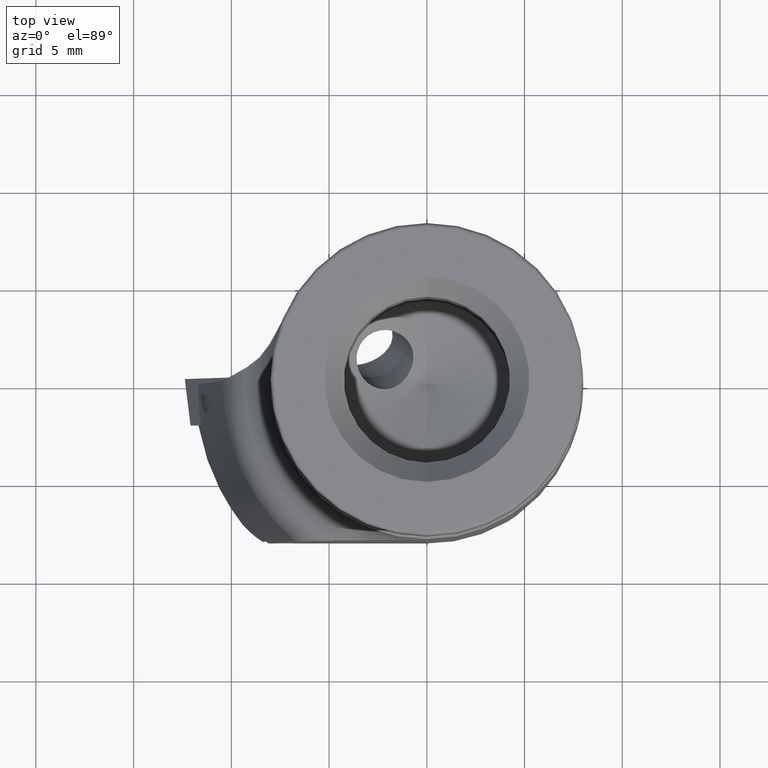
[diagram: clean part render]
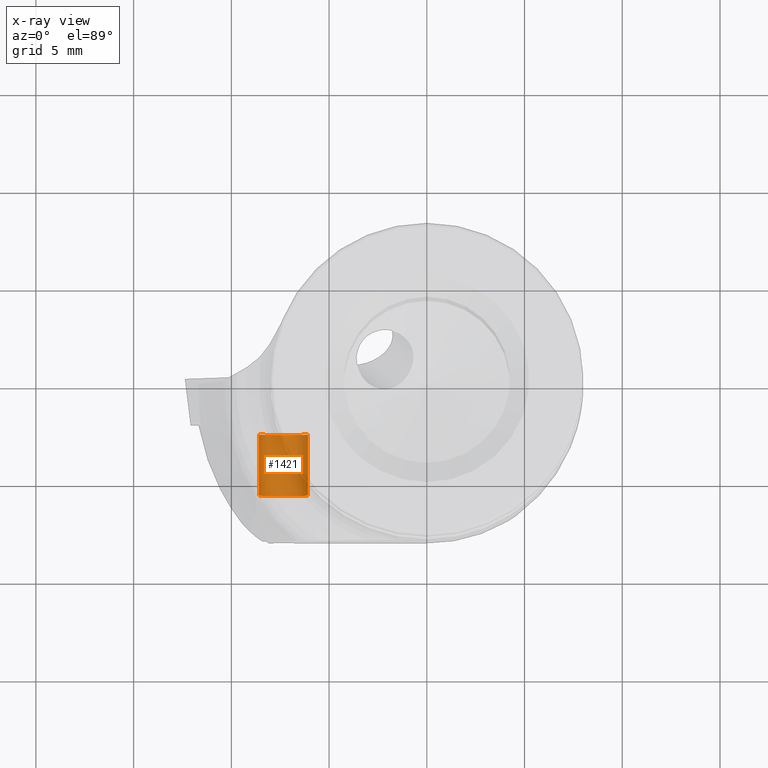
[diagram: x-ray — body ghosted, one internal face saturated and labeled with its STEP entity id]
A machine part, top view, then the same camera in x-ray: the body is ghosted and one INTERNAL B-rep face — a face not visible from any outside direction — is saturated and labeled: STEP entity #1421.
In plain terms, the highlighted cylindrical surface (edge-blend (fillet) strip) has radius 1.25 mm, axis along (-0, 1, -0).
Its self-contained STEP definition (entity closure, byte-faithful):
#1011=VERTEX_POINT('NONE',#2366);
#1015=EDGE_CURVE('NONE',#1011,#1753,#2370,.T.);
#1085=VERTEX_POINT('NONE',#2446);
#1307=EDGE_CURVE('NONE',#1085,#1515,#2697,.T.);
#1421=ADVANCED_FACE('NONE',(#2826),#2827,.T.);
#1515=VERTEX_POINT('NONE',#2931);
#1629=EDGE_CURVE('NONE',#1011,#1085,#3053,.T.);
#1753=VERTEX_POINT('NONE',#3187);
#1921=EDGE_CURVE('NONE',#1753,#1515,#3372,.T.);
#2366=CARTESIAN_POINT('',(-6.08375210299887,-5.54499999999999,-23.4174726344393));
#2370=LINE('',#4533,#4534);
#2446=CARTESIAN_POINT('',(-8.58375210299888,-5.54499999999999,-23.4174726344393));
#2697=LINE('',#5230,#5231);
#2826=FACE_OUTER_BOUND('',#5471,.T.);
#2827=CYLINDRICAL_SURFACE('',#5472,1.25);
#2931=CARTESIAN_POINT('',(-8.58375210299887,-2.42,-23.4174726344393));
#3053=CIRCLE('',#5900,1.25);
#3187=CARTESIAN_POINT('',(-6.08375210299887,-2.42,-23.4174726344393));
#3372=CIRCLE('',#6597,1.25);
#4533=CARTESIAN_POINT('',(-6.08375210299887,1.52242507433892,-23.4174726344393));
#4534=VECTOR('',#7140,1000.0);
#5230=CARTESIAN_POINT('',(-8.58375210299888,1.52242507433892,-23.4174726344393));
#5231=VECTOR('',#7540,1000.0);
#5471=EDGE_LOOP('',(#7715,#7716,#7717,#7718));
#5472=AXIS2_PLACEMENT_3D('',#7719,#7720,#7721);
#5900=AXIS2_PLACEMENT_3D('',#7970,#7971,#7972);
#6597=AXIS2_PLACEMENT_3D('',#8313,#8314,#8315);
#7140=DIRECTION('',(0.0,1.0,0.0));
#7540=DIRECTION('',(0.0,1.0,0.0));
#7715=ORIENTED_EDGE('',*,*,#1629,.T.);
#7716=ORIENTED_EDGE('',*,*,#1307,.T.);
#7717=ORIENTED_EDGE('',*,*,#1921,.F.);
#7718=ORIENTED_EDGE('',*,*,#1015,.F.);
#7719=CARTESIAN_POINT('',(-7.33375210299887,1.52242507433892,-23.4174726344393));
#7720=DIRECTION('',(-0.0,1.0,-0.0));
#7721=DIRECTION('',(1.0,0.0,-1.22464679914735E-016));
#7970=CARTESIAN_POINT('',(-7.33375210299887,-5.54499999999999,-23.4174726344393));
#7971=DIRECTION('',(0.0,1.0,0.0));
#7972=DIRECTION('',(1.0,0.0,-1.22464679914735E-016));
#8313=CARTESIAN_POINT('',(-7.33375210299887,-2.42,-23.4174726344393));
#8314=DIRECTION('',(0.0,1.0,0.0));
#8315=DIRECTION('',(1.0,0.0,-1.22464679914735E-016));